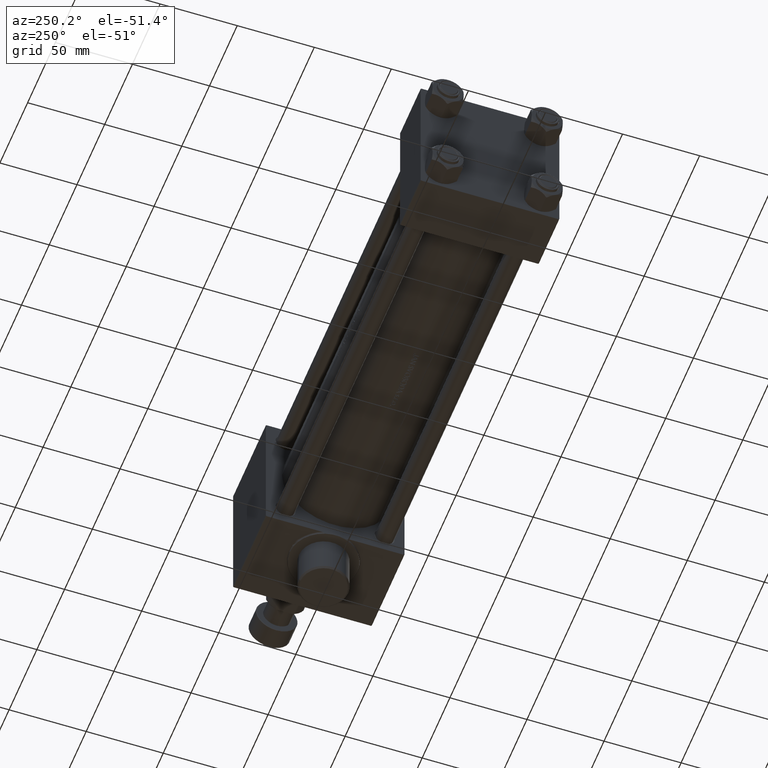
[diagram: clean part render]
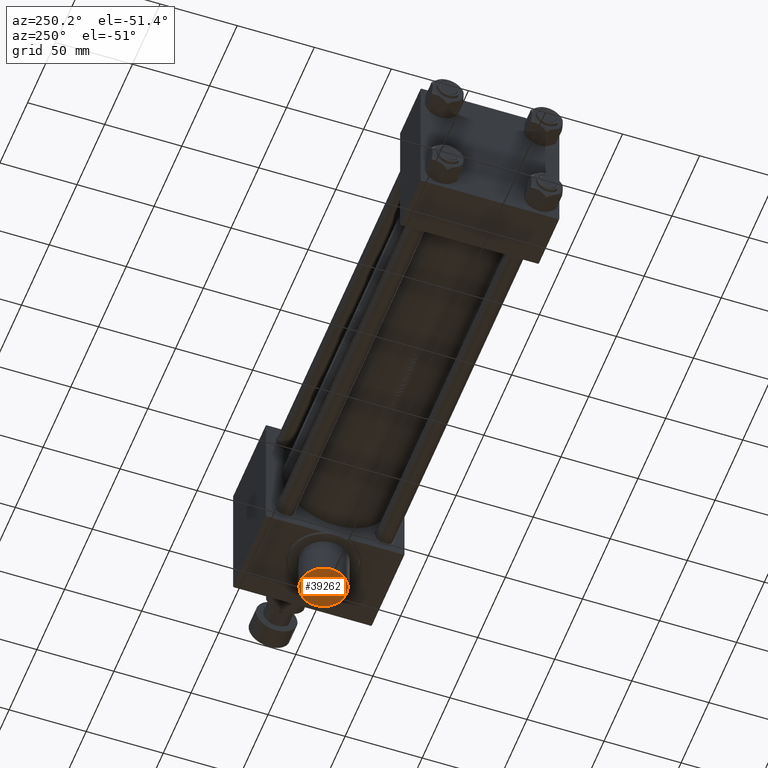
[diagram: same view with one face highlighted and labeled with its STEP entity id]
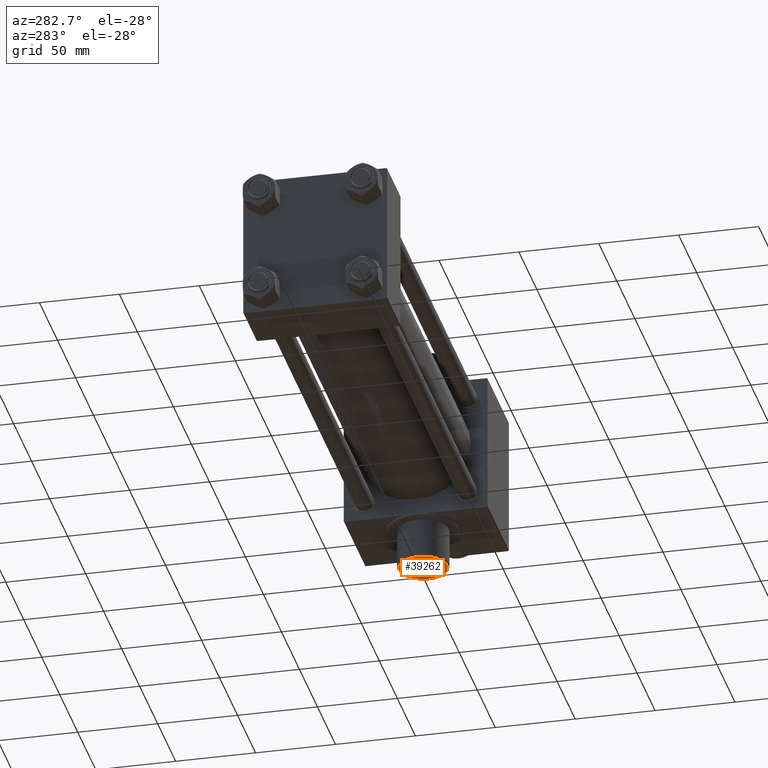
[diagram: same view with one face highlighted and labeled with its STEP entity id]
A machine part, auxiliary view. The second image highlights one B-rep face of the part: STEP entity #39262.
A second angle (auxiliary view) of the same face is appended — the face is thin or edge-on in the first view.
In plain terms, the highlighted planar face has unit normal (0, -0, -1).
Its self-contained STEP definition (entity closure, byte-faithful):
#349 = CARTESIAN_POINT ( 'NONE',  ( 300.0000000000000000, 70.50000000000000000, -2.255140518769849223E-15 ) ) ;
#2482 = DIRECTION ( 'NONE',  ( 0.000000000000000000, -8.673617379884036705E-17, -1.000000000000000000 ) ) ;
#5234 = AXIS2_PLACEMENT_3D ( 'NONE', #37580, #11660, #15705 ) ;
#7824 = CARTESIAN_POINT ( 'NONE',  ( 300.0000000000000000, 70.50000000000000000, -2.255140518769849223E-15 ) ) ;
#8938 = DIRECTION ( 'NONE',  ( 0.000000000000000000, 1.000000000000000000, -8.673617379884036705E-17 ) ) ;
#9089 = ORIENTED_EDGE ( 'NONE', *, *, #15465, .T. ) ;
#9173 = CARTESIAN_POINT ( 'NONE',  ( 300.0000000000000000, 70.50000000000000000, 14.99999999999984190 ) ) ;
#11660 = DIRECTION ( 'NONE',  ( 0.000000000000000000, 1.000000000000000000, -8.673617379884036705E-17 ) ) ;
#15465 = EDGE_CURVE ( 'NONE', #39331, #44447, #26266, .T. ) ;
#15705 = DIRECTION ( 'NONE',  ( 0.000000000000000000, 0.000000000000000000, 1.000000000000000000 ) ) ;
#15831 = FACE_OUTER_BOUND ( 'NONE', #29392, .T. ) ;
#17542 = CARTESIAN_POINT ( 'NONE',  ( 300.0000000000000000, 70.50000000000000000, -14.99999999999984546 ) ) ;
#22332 = AXIS2_PLACEMENT_3D ( 'NONE', #349, #8938, #2482 ) ;
#25454 = DIRECTION ( 'NONE',  ( 0.000000000000000000, 1.000000000000000000, -8.673617379884036705E-17 ) ) ;
#26266 = CIRCLE ( 'NONE', #32336, 14.99999999999984368 ) ;
#26506 = EDGE_CURVE ( 'NONE', #44447, #39331, #31825, .T. ) ;
#29392 = EDGE_LOOP ( 'NONE', ( #43891, #9089 ) ) ;
#30345 = PLANE ( 'NONE',  #22332 ) ;
#31825 = CIRCLE ( 'NONE', #5234, 14.99999999999984368 ) ;
#32336 = AXIS2_PLACEMENT_3D ( 'NONE', #7824, #25454, #40408 ) ;
#37580 = CARTESIAN_POINT ( 'NONE',  ( 300.0000000000000000, 70.50000000000000000, -2.255140518769849223E-15 ) ) ;
#39262 = ADVANCED_FACE ( 'NONE', ( #15831 ), #30345, .T. ) ;
#39331 = VERTEX_POINT ( 'NONE', #9173 ) ;
#40408 = DIRECTION ( 'NONE',  ( 0.000000000000000000, 0.000000000000000000, 1.000000000000000000 ) ) ;
#43891 = ORIENTED_EDGE ( 'NONE', *, *, #26506, .T. ) ;
#44447 = VERTEX_POINT ( 'NONE', #17542 ) ;